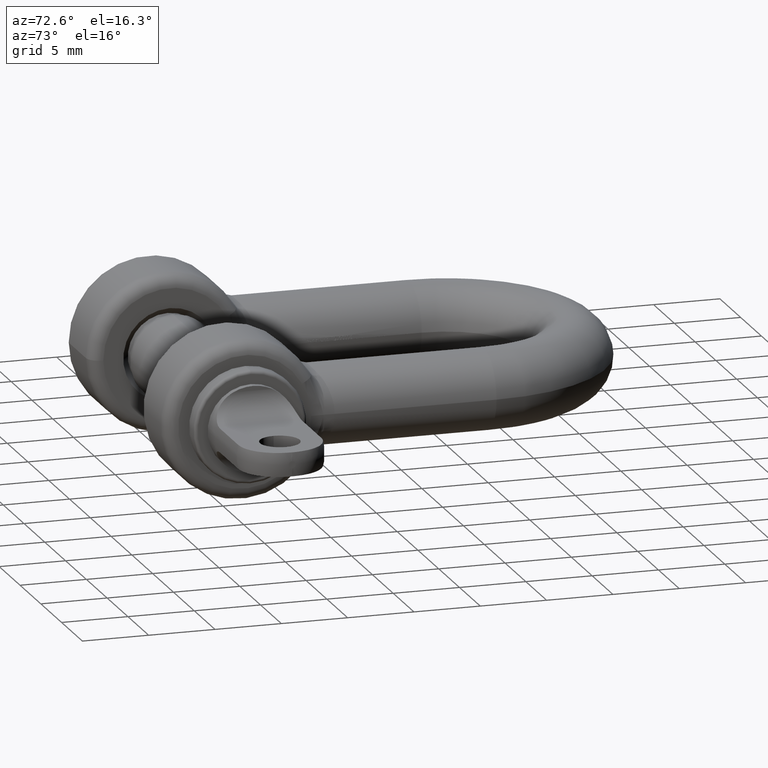
[diagram: clean part render]
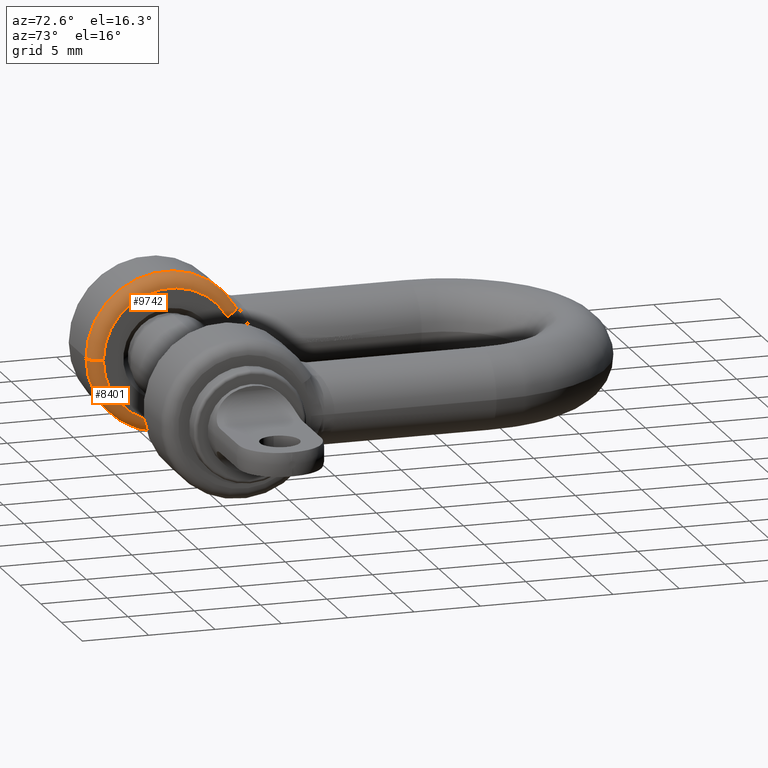
[diagram: same view with one multi-face feature highlighted, each face labeled with its STEP entity id]
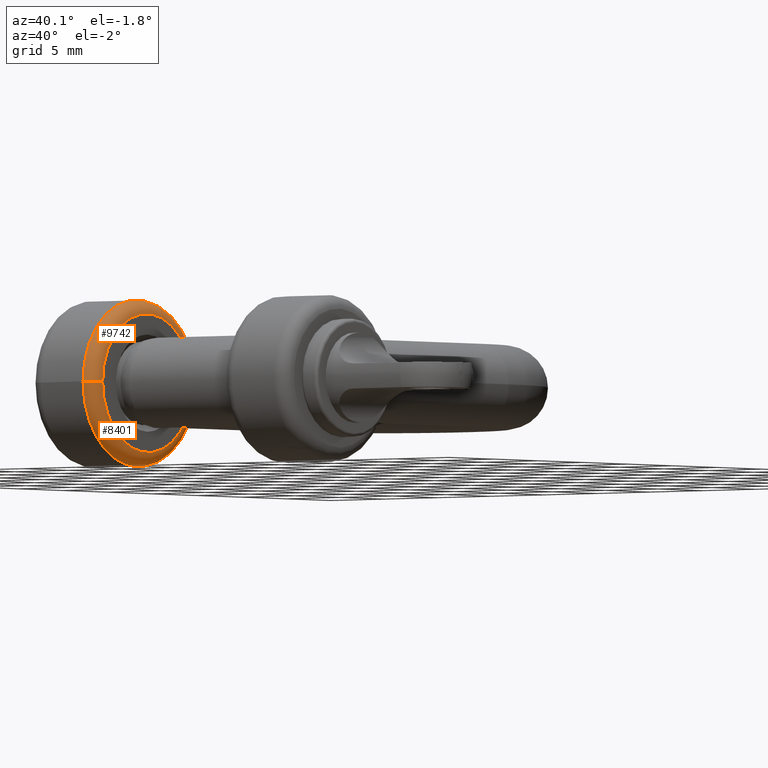
[diagram: same view with one multi-face feature highlighted, each face labeled with its STEP entity id]
A machine part, auxiliary view. The highlighted faces form ONE feature: a constant-radius fillet chain: 2 tangent blend faces with common blend radius 1 mm. The faces share edges in the B-rep.
A second angle (auxiliary view) of the same feature is appended — it is thin or edge-on in the first view.
Their STEP definitions:
[1] entity #9742 (Torus):
#248 = CARTESIAN_POINT ( 'NONE',  ( -6.609353853192745400, 11.19559243225604200, 2.840052488242523800 ) ) ;
#262 = EDGE_CURVE ( 'NONE', #12574, #4695, #11544, .T. ) ;
#394 = CARTESIAN_POINT ( 'NONE',  ( -6.486593619367365400, 11.14018270878383300, 2.810775456981194200 ) ) ;
#407 = DIRECTION ( 'NONE',  ( -1.000000000000000000, 0.0000000000000000000, 0.0000000000000000000 ) ) ;
#672 = EDGE_CURVE ( 'NONE', #7566, #10431, #13026, .T. ) ;
#715 = ORIENTED_EDGE ( 'NONE', *, *, #262, .F. ) ;
#864 = CARTESIAN_POINT ( 'NONE',  ( -7.000000000000003600, 6.000000000000000900, 0.0000000000000000000 ) ) ;
#910 = DIRECTION ( 'NONE',  ( -1.445602896647338900E-016, -1.000000000000000000, 0.0000000000000000000 ) ) ;
#1168 = AXIS2_PLACEMENT_3D ( 'NONE', #12247, #13400, #12201 ) ;
#1426 = CARTESIAN_POINT ( 'NONE',  ( -6.946896028013289200, 11.23042856035718500, 2.940024937822926600 ) ) ;
#1630 = CARTESIAN_POINT ( 'NONE',  ( -6.116830845271283400, 10.78828885481408200, 2.680443811404647800 ) ) ;
#1635 = EDGE_CURVE ( 'NONE', #10511, #7566, #8209, .T. ) ;
#2010 = DIRECTION ( 'NONE',  ( -1.000000000000000000, 1.652117596168387800E-016, 0.0000000000000000000 ) ) ;
#2525 = CARTESIAN_POINT ( 'NONE',  ( -6.766761008022317700, 11.23500897972000500, 2.878434182541072900 ) ) ;
#2570 = CARTESIAN_POINT ( 'NONE',  ( -6.342946881125637800, 11.04523259653186800, 2.773111487219887600 ) ) ;
#3626 = CARTESIAN_POINT ( 'NONE',  ( -6.578163121282929500, 11.18372345760820800, 2.832709130713101200 ) ) ;
#3676 = CARTESIAN_POINT ( 'NONE',  ( -6.293163097037402800, 10.99788711849581600, 2.755952014794479600 ) ) ;
#4013 = CARTESIAN_POINT ( 'NONE',  ( -7.000000000000002700, 11.21379645454133300, 2.969229955832362900 ) ) ;
#4212 = EDGE_CURVE ( 'NONE', #10431, #12574, #11142, .T. ) ;
#4654 = ORIENTED_EDGE ( 'NONE', *, *, #4212, .F. ) ;
#4695 = VERTEX_POINT ( 'NONE', #7730 ) ;
#5233 = DIRECTION ( 'NONE',  ( -1.652117596168387800E-016, -1.000000000000000000, 0.0000000000000000000 ) ) ;
#5800 = CARTESIAN_POINT ( 'NONE',  ( -6.293163097037402800, 10.99788711849581600, 2.755952014794479600 ) ) ;
#6824 = AXIS2_PLACEMENT_3D ( 'NONE', #10834, #2010, #5233 ) ;
#7053 = FACE_OUTER_BOUND ( 'NONE', #7768, .T. ) ;
#7184 = EDGE_CURVE ( 'NONE', #4695, #10511, #10336, .T. ) ;
#7381 = CARTESIAN_POINT ( 'NONE',  ( -7.000000000000004400, 1.000000000000000000, 0.0000000000000000000 ) ) ;
#7566 = VERTEX_POINT ( 'NONE', #12184 ) ;
#7730 = CARTESIAN_POINT ( 'NONE',  ( -6.293163097037402800, 10.99788711849581600, 2.755952014794479600 ) ) ;
#7768 = EDGE_LOOP ( 'NONE', ( #8525, #11510, #8781, #715, #4654 ) ) ;
#7974 = CARTESIAN_POINT ( 'NONE',  ( -6.703496694052142300, 11.22455551114846300, 2.862623218867040600 ) ) ;
#8121 = TOROIDAL_SURFACE ( 'NONE', #6824, 5.000000000000000900, 1.000000000000000000 ) ;
#8122 = CARTESIAN_POINT ( 'NONE',  ( -6.398458859949625000, 11.08741815524881600, 2.788493922925769900 ) ) ;
#8209 = CIRCLE ( 'NONE', #1168, 5.000000000000000900 ) ;
#8525 = ORIENTED_EDGE ( 'NONE', *, *, #672, .F. ) ;
#8546 = DIRECTION ( 'NONE',  ( -1.000000000000000000, 1.652117596168387800E-016, 0.0000000000000000000 ) ) ;
#8781 = ORIENTED_EDGE ( 'NONE', *, *, #7184, .F. ) ;
#9143 = AXIS2_PLACEMENT_3D ( 'NONE', #7381, #10122, #407 ) ;
#9179 = CARTESIAN_POINT ( 'NONE',  ( -6.888460675002892100, 11.23794550432436900, 2.917135042019016300 ) ) ;
#9532 = CARTESIAN_POINT ( 'NONE',  ( -6.000000000000003600, 10.44405803431315900, 2.530867930113879900 ) ) ;
#9742 = ADVANCED_FACE ( 'NONE', ( #7053 ), #8121, .T. ) ;
#10122 = DIRECTION ( 'NONE',  ( -0.0000000000000000000, 0.0000000000000000000, -1.000000000000000000 ) ) ;
#10194 = CARTESIAN_POINT ( 'NONE',  ( -6.000000000000002700, 10.34483037878444400, 2.474358296526968800 ) ) ;
#10336 = B_SPLINE_CURVE_WITH_KNOTS ( 'NONE', 3,
 ( #5800, #13582, #1630, #13893, #9532, #11642 ),
 .UNSPECIFIED., .F., .F.,
 ( 4, 2, 4 ),
 ( 0.0000000000000000000, 0.5000000000000000000, 1.000000000000000000 ),
 .UNSPECIFIED. ) ;
#10431 = VERTEX_POINT ( 'NONE', #12174 ) ;
#10449 = AXIS2_PLACEMENT_3D ( 'NONE', #864, #8546, #910 ) ;
#10511 = VERTEX_POINT ( 'NONE', #10194 ) ;
#10834 = CARTESIAN_POINT ( 'NONE',  ( -7.000000000000003600, 6.000000000000000900, 0.0000000000000000000 ) ) ;
#11142 = CIRCLE ( 'NONE', #10449, 6.000000000000000900 ) ;
#11510 = ORIENTED_EDGE ( 'NONE', *, *, #1635, .F. ) ;
#11544 = B_SPLINE_CURVE_WITH_KNOTS ( 'NONE', 3,
 ( #13558, #1426, #9179, #2525, #7974, #248, #3626, #12449, #394, #8122, #2570, #3676 ),
 .UNSPECIFIED., .F., .F.,
 ( 4, 2, 2, 2, 2, 4 ),
 ( 0.0000000000000000000, 0.2500000000000000000, 0.5000000000000000000, 0.6250000000000000000, 0.7500000000000000000, 1.000000000000000000 ),
 .UNSPECIFIED. ) ;
#11642 = CARTESIAN_POINT ( 'NONE',  ( -6.000000000000002700, 10.34483037878444400, 2.474358296526968800 ) ) ;
#12174 = CARTESIAN_POINT ( 'NONE',  ( -7.000000000000004400, 0.0000000000000000000, 0.0000000000000000000 ) ) ;
#12184 = CARTESIAN_POINT ( 'NONE',  ( -6.000000000000004400, 1.000000000000000000, 0.0000000000000000000 ) ) ;
#12201 = DIRECTION ( 'NONE',  ( -1.734723475976806800E-016, -1.000000000000000000, 0.0000000000000000000 ) ) ;
#12247 = CARTESIAN_POINT ( 'NONE',  ( -6.000000000000003600, 6.000000000000000900, 0.0000000000000000000 ) ) ;
#12449 = CARTESIAN_POINT ( 'NONE',  ( -6.516783004370240400, 11.15601859587210100, 2.818070615082435300 ) ) ;
#12574 = VERTEX_POINT ( 'NONE', #4013 ) ;
#13026 = CIRCLE ( 'NONE', #9143, 0.9999999999999991100 ) ;
#13400 = DIRECTION ( 'NONE',  ( 1.000000000000000000, -1.652117596168387800E-016, -0.0000000000000000000 ) ) ;
#13558 = CARTESIAN_POINT ( 'NONE',  ( -7.000000000000002700, 11.21379645454133300, 2.969229955832362900 ) ) ;
#13582 = CARTESIAN_POINT ( 'NONE',  ( -6.193595528860928600, 10.90319616242371100, 2.721633069943663900 ) ) ;
#13893 = CARTESIAN_POINT ( 'NONE',  ( -6.020261142178251000, 10.55842265823617900, 2.584812217858938300 ) ) ;
[2] entity #8401 (Torus):
#263 = AXIS2_PLACEMENT_3D ( 'NONE', #12515, #9235, #3635 ) ;
#325 = CARTESIAN_POINT ( 'NONE',  ( -6.578163121282932100, 11.18372345760820800, -2.832709130713101600 ) ) ;
#358 = DIRECTION ( 'NONE',  ( 1.000000000000000000, -1.652117596168387800E-016, -0.0000000000000000000 ) ) ;
#407 = DIRECTION ( 'NONE',  ( -1.000000000000000000, 0.0000000000000000000, 0.0000000000000000000 ) ) ;
#672 = EDGE_CURVE ( 'NONE', #7566, #10431, #13026, .T. ) ;
#927 = B_SPLINE_CURVE_WITH_KNOTS ( 'NONE', 3,
 ( #13290, #5714, #8910, #2410, #2361, #10085 ),
 .UNSPECIFIED., .F., .F.,
 ( 4, 2, 4 ),
 ( 0.0000000000000000000, 0.5000000000000000000, 1.000000000000000000 ),
 .UNSPECIFIED. ) ;
#980 = EDGE_CURVE ( 'NONE', #7566, #1185, #6057, .T. ) ;
#1185 = VERTEX_POINT ( 'NONE', #3496 ) ;
#1310 = CARTESIAN_POINT ( 'NONE',  ( -6.486593619367369000, 11.14018270878383600, -2.810775456981193400 ) ) ;
#1798 = AXIS2_PLACEMENT_3D ( 'NONE', #4979, #358, #8089 ) ;
#2103 = ORIENTED_EDGE ( 'NONE', *, *, #12508, .F. ) ;
#2361 = CARTESIAN_POINT ( 'NONE',  ( -6.193595528860932100, 10.90319616242372200, -2.721633069943662200 ) ) ;
#2410 = CARTESIAN_POINT ( 'NONE',  ( -6.116830845271284300, 10.78828885481408800, -2.680443811404645600 ) ) ;
#3496 = CARTESIAN_POINT ( 'NONE',  ( -6.000000000000002700, 10.34483037878444400, -2.474358296526968400 ) ) ;
#3635 = DIRECTION ( 'NONE',  ( -1.652117596168387800E-016, -1.000000000000000000, 0.0000000000000000000 ) ) ;
#3677 = DIRECTION ( 'NONE',  ( -1.445602896647338900E-016, -1.000000000000000000, 0.0000000000000000000 ) ) ;
#4553 = CARTESIAN_POINT ( 'NONE',  ( -6.766761008022321300, 11.23500897972000300, -2.878434182541075100 ) ) ;
#4979 = CARTESIAN_POINT ( 'NONE',  ( -6.000000000000003600, 6.000000000000000900, 0.0000000000000000000 ) ) ;
#5714 = CARTESIAN_POINT ( 'NONE',  ( -6.000000000000003600, 10.44405803431315900, -2.530867930113879900 ) ) ;
#5787 = ORIENTED_EDGE ( 'NONE', *, *, #12216, .F. ) ;
#5846 = CARTESIAN_POINT ( 'NONE',  ( -6.516783004370243000, 11.15601859587209800, -2.818070615082435300 ) ) ;
#5957 = CARTESIAN_POINT ( 'NONE',  ( -7.000000000000003600, 6.000000000000000900, 0.0000000000000000000 ) ) ;
#6057 = CIRCLE ( 'NONE', #1798, 5.000000000000000900 ) ;
#6585 = EDGE_CURVE ( 'NONE', #1185, #11131, #927, .T. ) ;
#7058 = EDGE_LOOP ( 'NONE', ( #12042, #7453, #2103, #5787, #13716 ) ) ;
#7249 = VERTEX_POINT ( 'NONE', #9478 ) ;
#7381 = CARTESIAN_POINT ( 'NONE',  ( -7.000000000000004400, 1.000000000000000000, 0.0000000000000000000 ) ) ;
#7453 = ORIENTED_EDGE ( 'NONE', *, *, #672, .T. ) ;
#7566 = VERTEX_POINT ( 'NONE', #12184 ) ;
#7955 = CARTESIAN_POINT ( 'NONE',  ( -6.342946881125641300, 11.04523259653187100, -2.773111487219885000 ) ) ;
#8051 = CARTESIAN_POINT ( 'NONE',  ( -6.609353853192748900, 11.19559243225604200, -2.840052488242525500 ) ) ;
#8089 = DIRECTION ( 'NONE',  ( -1.734723475976806800E-016, -1.000000000000000000, 0.0000000000000000000 ) ) ;
#8174 = DIRECTION ( 'NONE',  ( -1.000000000000000000, 1.652117596168387800E-016, 0.0000000000000000000 ) ) ;
#8401 = ADVANCED_FACE ( 'NONE', ( #10918 ), #9027, .T. ) ;
#8794 = CIRCLE ( 'NONE', #10484, 6.000000000000000900 ) ;
#8831 = B_SPLINE_CURVE_WITH_KNOTS ( 'NONE', 3,
 ( #13539, #7955, #9061, #1310, #5846, #325, #8051, #8960, #4553, #10087, #12293, #13447 ),
 .UNSPECIFIED., .F., .F.,
 ( 4, 2, 2, 2, 2, 4 ),
 ( 0.0000000000000000000, 0.2500000000000000000, 0.3750000000000000000, 0.5000000000000000000, 0.7500000000000000000, 1.000000000000000000 ),
 .UNSPECIFIED. ) ;
#8910 = CARTESIAN_POINT ( 'NONE',  ( -6.020261142178252800, 10.55842265823617900, -2.584812217858935700 ) ) ;
#8960 = CARTESIAN_POINT ( 'NONE',  ( -6.703496694052145000, 11.22455551114846100, -2.862623218867042900 ) ) ;
#9027 = TOROIDAL_SURFACE ( 'NONE', #263, 5.000000000000000900, 1.000000000000000000 ) ;
#9061 = CARTESIAN_POINT ( 'NONE',  ( -6.398458859949626800, 11.08741815524882300, -2.788493922925768100 ) ) ;
#9143 = AXIS2_PLACEMENT_3D ( 'NONE', #7381, #10122, #407 ) ;
#9235 = DIRECTION ( 'NONE',  ( -1.000000000000000000, 1.652117596168387800E-016, 0.0000000000000000000 ) ) ;
#9478 = CARTESIAN_POINT ( 'NONE',  ( -7.000000000000002700, 11.21379645454133300, -2.969229955832362900 ) ) ;
#9614 = CARTESIAN_POINT ( 'NONE',  ( -6.293163097037402800, 10.99788711849582200, -2.755952014794474700 ) ) ;
#10085 = CARTESIAN_POINT ( 'NONE',  ( -6.293163097037402800, 10.99788711849582200, -2.755952014794474700 ) ) ;
#10087 = CARTESIAN_POINT ( 'NONE',  ( -6.888460675002892100, 11.23794550432437100, -2.917135042019015900 ) ) ;
#10122 = DIRECTION ( 'NONE',  ( -0.0000000000000000000, 0.0000000000000000000, -1.000000000000000000 ) ) ;
#10431 = VERTEX_POINT ( 'NONE', #12174 ) ;
#10484 = AXIS2_PLACEMENT_3D ( 'NONE', #5957, #8174, #3677 ) ;
#10918 = FACE_OUTER_BOUND ( 'NONE', #7058, .T. ) ;
#11131 = VERTEX_POINT ( 'NONE', #9614 ) ;
#12042 = ORIENTED_EDGE ( 'NONE', *, *, #980, .F. ) ;
#12174 = CARTESIAN_POINT ( 'NONE',  ( -7.000000000000004400, 0.0000000000000000000, 0.0000000000000000000 ) ) ;
#12184 = CARTESIAN_POINT ( 'NONE',  ( -6.000000000000004400, 1.000000000000000000, 0.0000000000000000000 ) ) ;
#12216 = EDGE_CURVE ( 'NONE', #11131, #7249, #8831, .T. ) ;
#12293 = CARTESIAN_POINT ( 'NONE',  ( -6.946896028013289200, 11.23042856035718500, -2.940024937822925700 ) ) ;
#12508 = EDGE_CURVE ( 'NONE', #7249, #10431, #8794, .T. ) ;
#12515 = CARTESIAN_POINT ( 'NONE',  ( -7.000000000000003600, 6.000000000000000900, 0.0000000000000000000 ) ) ;
#13026 = CIRCLE ( 'NONE', #9143, 0.9999999999999991100 ) ;
#13290 = CARTESIAN_POINT ( 'NONE',  ( -6.000000000000002700, 10.34483037878444400, -2.474358296526968400 ) ) ;
#13447 = CARTESIAN_POINT ( 'NONE',  ( -7.000000000000002700, 11.21379645454133300, -2.969229955832362900 ) ) ;
#13539 = CARTESIAN_POINT ( 'NONE',  ( -6.293163097037402800, 10.99788711849582200, -2.755952014794474700 ) ) ;
#13716 = ORIENTED_EDGE ( 'NONE', *, *, #6585, .F. ) ;